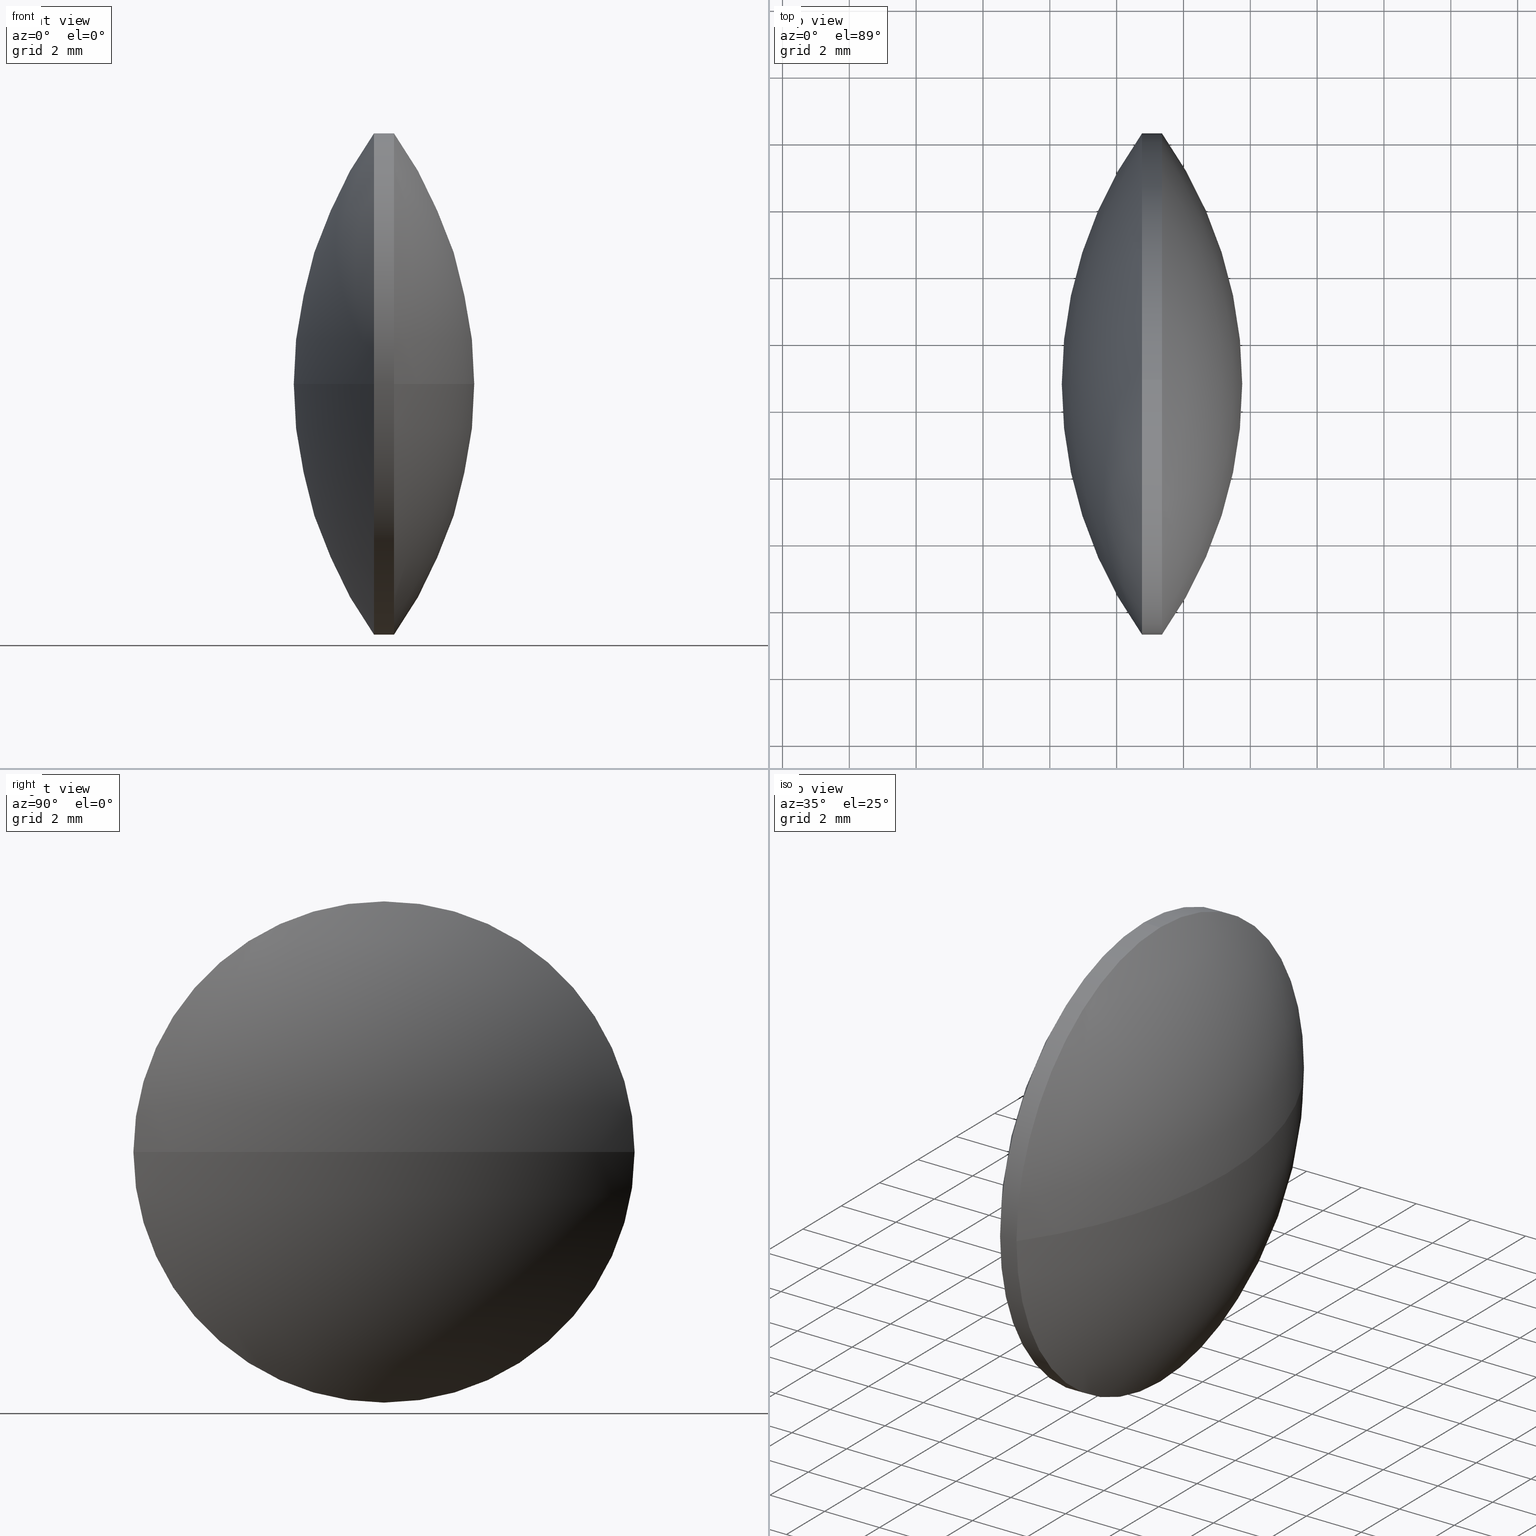
[diagram: canonical four-view strip — front | top / right | iso, engineering-drawing reading convention]
A machine part, canonical four-view strip (front | top / right | iso — engineering-drawing reading convention). The complete STEP part file that produces these views, byte-faithful:
ISO-10303-21;
HEADER;
FILE_DESCRIPTION (( 'STEP AP203' ),
    '1' );
FILE_NAME ('110095.STEP',
    '2019-07-04T03:00:58',
    ( '' ),
    ( '' ),
    'SwSTEP 2.0',
    'SolidWorks 2016',
    '' );
FILE_SCHEMA (( 'CONFIG_CONTROL_DESIGN' ));
ENDSEC;

DATA;
#1 = APPROVAL_ROLE ( '' ) ;
#2 = EDGE_CURVE ( 'NONE', #48, #190, #340, .T. ) ;
#3 = CLOSED_SHELL ( 'NONE', ( #210, #289, #75, #182, #261, #312 ) ) ;
#4 = AXIS2_PLACEMENT_3D ( 'NONE', #99, #200, #47 ) ;
#5 = FACE_OUTER_BOUND ( 'NONE', #273, .T. ) ;
#6 = CC_DESIGN_APPROVAL ( #184, ( #332 ) ) ;
#7 = COORDINATED_UNIVERSAL_TIME_OFFSET ( 8, 0, .AHEAD. ) ;
#8 = EDGE_LOOP ( 'NONE', ( #154, #253, #309, #137 ) ) ;
#9 = PRODUCT ( '110095', '110095', '', ( #166 ) ) ;
#10 = DIRECTION ( 'NONE',  ( 0.0000000000000000000, 0.0000000000000000000, 1.000000000000000000 ) ) ;
#11 = CARTESIAN_POINT ( 'NONE',  ( 61.27673844960327900, 28.71030296644745400, 0.0000000000000000000 ) ) ;
#12 = DIRECTION ( 'NONE',  ( -0.0000000000000000000, 0.0000000000000000000, 1.000000000000000000 ) ) ;
#13 = CARTESIAN_POINT ( 'NONE',  ( 61.27673844960327900, 28.71030296644745400, 0.0000000000000000000 ) ) ;
#14 = CARTESIAN_POINT ( 'NONE',  ( 46.83389843553333500, 28.71030296644745400, -7.499999999999927200 ) ) ;
#15 = VERTEX_POINT ( 'NONE', #33 ) ;
#16 = CARTESIAN_POINT ( 'NONE',  ( 61.27673844960327900, 28.71030296644745400, 0.0000000000000000000 ) ) ;
#17 = CALENDAR_DATE ( 2019, 4, 7 ) ;
#18 = PRODUCT_DEFINITION_SHAPE ( 'NONE', 'NONE',  #332 ) ;
#19 = APPROVAL_STATUS ( 'not_yet_approved' ) ;
#20 = EDGE_CURVE ( 'NONE', #120, #103, #58, .T. ) ;
#21 =( LENGTH_UNIT ( ) NAMED_UNIT ( * ) SI_UNIT ( .MILLI., .METRE. ) );
#22 = DATE_AND_TIME ( #333, #158 ) ;
#23 = CC_DESIGN_PERSON_AND_ORGANIZATION_ASSIGNMENT ( #314, #25, ( #332 ) ) ;
#24 = APPROVAL_DATE_TIME ( #256, #254 ) ;
#25 = PERSON_AND_ORGANIZATION_ROLE ( 'creator' ) ;
#26 = COORDINATED_UNIVERSAL_TIME_OFFSET ( 8, 0, .AHEAD. ) ;
#27 = APPROVAL_ROLE ( '' ) ;
#28 = ORIENTED_EDGE ( 'NONE', *, *, #203, .T. ) ;
#29 = PERSON_AND_ORGANIZATION_ROLE ( 'design_owner' ) ;
#30 = ADVANCED_BREP_SHAPE_REPRESENTATION ( '110095', ( #93, #244 ), #76 ) ;
#31 = CARTESIAN_POINT ( 'NONE',  ( 51.35798844960340400, 28.71030296644745400, 0.0000000000000000000 ) ) ;
#32 = APPROVAL_DATE_TIME ( #22, #296 ) ;
#33 = CARTESIAN_POINT ( 'NONE',  ( 50.75798844960341000, 28.71030296644745400, 7.499999999999927200 ) ) ;
#34 = DIRECTION ( 'NONE',  ( -0.0000000000000000000, 0.0000000000000000000, -1.000000000000000000 ) ) ;
#35 = CARTESIAN_POINT ( 'NONE',  ( 40.83923844960349900, 28.71030296644745400, 0.0000000000000000000 ) ) ;
#36 = EDGE_CURVE ( 'NONE', #103, #276, #331, .T. ) ;
#37 = AXIS2_PLACEMENT_3D ( 'NONE', #206, #12, #299 ) ;
#38 = CALENDAR_DATE ( 2019, 4, 7 ) ;
#39 = COORDINATED_UNIVERSAL_TIME_OFFSET ( 8, 0, .AHEAD. ) ;
#40 = ORIENTED_EDGE ( 'NONE', *, *, #2, .F. ) ;
#41 = DIRECTION ( 'NONE',  ( 0.0000000000000000000, 0.0000000000000000000, 1.000000000000000000 ) ) ;
#42 = CARTESIAN_POINT ( 'NONE',  ( 40.83923844960349900, 28.71030296644745400, 0.0000000000000000000 ) ) ;
#43 = CARTESIAN_POINT ( 'NONE',  ( 46.83389843553333500, 28.71030296644745400, 0.0000000000000000000 ) ) ;
#44 = CIRCLE ( 'NONE', #56, 7.499999999999927200 ) ;
#45 = DIRECTION ( 'NONE',  ( -1.000000000000000000, -0.0000000000000000000, -0.0000000000000000000 ) ) ;
#46 = CARTESIAN_POINT ( 'NONE',  ( 0.0000000000000000000, 0.0000000000000000000, 0.0000000000000000000 ) ) ;
#47 = DIRECTION ( 'NONE',  ( 0.0000000000000000000, 0.0000000000000000000, 1.000000000000000000 ) ) ;
#48 = VERTEX_POINT ( 'NONE', #91 ) ;
#49 = EDGE_CURVE ( 'NONE', #183, #190, #283, .T. ) ;
#50 = APPROVAL_PERSON_ORGANIZATION ( #268, #184, #313 ) ;
#51 = DATE_AND_TIME ( #286, #298 ) ;
#52 = ORIENTED_EDGE ( 'NONE', *, *, #274, .F. ) ;
#53 = PERSON_AND_ORGANIZATION_ROLE ( 'classification_officer' ) ;
#54 = CIRCLE ( 'NONE', #72, 12.91874999999988200 ) ;
#55 = AXIS2_PLACEMENT_3D ( 'NONE', #301, #86, #10 ) ;
#56 = AXIS2_PLACEMENT_3D ( 'NONE', #232, #68, #131 ) ;
#57 = ORIENTED_EDGE ( 'NONE', *, *, #2, .T. ) ;
#58 = CIRCLE ( 'NONE', #149, 12.91874999999988600 ) ;
#59 = CC_DESIGN_APPROVAL ( #254, ( #304 ) ) ;
#60 = DATE_AND_TIME ( #38, #77 ) ;
#61 = CALENDAR_DATE ( 2019, 4, 7 ) ;
#62 = DIRECTION ( 'NONE',  ( -0.0000000000000000000, 0.0000000000000000000, -1.000000000000000000 ) ) ;
#63 = CIRCLE ( 'NONE', #94, 12.91874999999985700 ) ;
#64 = CARTESIAN_POINT ( 'NONE',  ( 40.83923844960349900, 28.71030296644745400, 0.0000000000000000000 ) ) ;
#65 = DIRECTION ( 'NONE',  ( 0.0000000000000000000, 0.0000000000000000000, 1.000000000000000000 ) ) ;
#66 = COORDINATED_UNIVERSAL_TIME_OFFSET ( 8, 0, .AHEAD. ) ;
#67 = DATE_AND_TIME ( #61, #343 ) ;
#68 = DIRECTION ( 'NONE',  ( -1.000000000000000000, -0.0000000000000000000, -0.0000000000000000000 ) ) ;
#69 = DATE_AND_TIME ( #152, #239 ) ;
#70 = DIRECTION ( 'NONE',  ( 0.0000000000000000000, 0.0000000000000000000, 1.000000000000000000 ) ) ;
#71 = ORIENTED_EDGE ( 'NONE', *, *, #223, .F. ) ;
#72 = AXIS2_PLACEMENT_3D ( 'NONE', #35, #155, #284 ) ;
#73 = DIRECTION ( 'NONE',  ( 1.000000000000000000, 0.0000000000000000000, 0.0000000000000000000 ) ) ;
#74 = AXIS2_PLACEMENT_3D ( 'NONE', #13, #34, #249 ) ;
#75 = ADVANCED_FACE ( 'NONE', ( #5 ), #250, .T. ) ;
#76 =( GEOMETRIC_REPRESENTATION_CONTEXT ( 3 ) GLOBAL_UNCERTAINTY_ASSIGNED_CONTEXT ( ( #281 ) ) GLOBAL_UNIT_ASSIGNED_CONTEXT ( ( #21, #102, #262 ) ) REPRESENTATION_CONTEXT ( 'NONE', 'WORKASPACE' ) );
#77 = LOCAL_TIME ( 11, 0, 58.00000000000000000, #324 ) ;
#78 = LOCAL_TIME ( 11, 0, 58.00000000000000000, #39 ) ;
#79 = ORIENTED_EDGE ( 'NONE', *, *, #49, .T. ) ;
#80 = APPROVAL ( #270, 'δָ��' ) ;
#81 = PERSON_AND_ORGANIZATION_ROLE ( 'design_supplier' ) ;
#82 = EDGE_CURVE ( 'NONE', #120, #300, #54, .T. ) ;
#83 = LOCAL_TIME ( 11, 0, 58.00000000000000000, #218 ) ;
#84 = PERSON_AND_ORGANIZATION ( #277, #98 ) ;
#85 = CARTESIAN_POINT ( 'NONE',  ( 48.35798844960342500, 28.71030296644745400, 0.0000000000000000000 ) ) ;
#86 = DIRECTION ( 'NONE',  ( -1.000000000000000000, -0.0000000000000000000, -0.0000000000000000000 ) ) ;
#87 = DATE_TIME_ROLE ( 'creation_date' ) ;
#88 = CC_DESIGN_SECURITY_CLASSIFICATION ( #204, ( #156 ) ) ;
#89 = ORIENTED_EDGE ( 'NONE', *, *, #203, .F. ) ;
#90 = CARTESIAN_POINT ( 'NONE',  ( 50.75798844960341000, 28.71030296644745400, 0.0000000000000000000 ) ) ;
#91 = CARTESIAN_POINT ( 'NONE',  ( 50.75798844960341000, 36.21030296644737900, 0.0000000000000000000 ) ) ;
#92 = AXIS2_PLACEMENT_3D ( 'NONE', #16, #62, #193 ) ;
#93 = MANIFOLD_SOLID_BREP ( '��ת1', #3 ) ;
#94 = AXIS2_PLACEMENT_3D ( 'NONE', #11, #195, #225 ) ;
#95 = PERSON_AND_ORGANIZATION_ROLE ( 'creator' ) ;
#96 = PERSON_AND_ORGANIZATION ( #277, #98 ) ;
#97 = CC_DESIGN_APPROVAL ( #285, ( #177 ) ) ;
#98 = ORGANIZATION ( 'δָ��', 'δָ��', '' ) ;
#99 = CARTESIAN_POINT ( 'NONE',  ( 50.75798844960341000, 28.71030296644745400, 0.0000000000000000000 ) ) ;
#100 = CC_DESIGN_PERSON_AND_ORGANIZATION_ASSIGNMENT ( #117, #109, ( #156 ) ) ;
#101 = COORDINATED_UNIVERSAL_TIME_OFFSET ( 8, 0, .AHEAD. ) ;
#102 =( NAMED_UNIT ( * ) PLANE_ANGLE_UNIT ( ) SI_UNIT ( $, .RADIAN. ) );
#103 = VERTEX_POINT ( 'NONE', #124 ) ;
#104 = CARTESIAN_POINT ( 'NONE',  ( 46.83389843553333500, 28.71030296644745400, 7.499999999999927200 ) ) ;
#105 = CARTESIAN_POINT ( 'NONE',  ( 51.35798844960340400, 28.71030296644745400, 7.499999999999927200 ) ) ;
#106 = DIRECTION ( 'NONE',  ( -1.000000000000000000, -0.0000000000000000000, -0.0000000000000000000 ) ) ;
#107 = EDGE_CURVE ( 'NONE', #300, #183, #197, .T. ) ;
#108 = SHAPE_DEFINITION_REPRESENTATION ( #18, #30 ) ;
#109 = PERSON_AND_ORGANIZATION_ROLE ( 'creator' ) ;
#110 = APPLICATION_CONTEXT ( 'configuration controlled 3d designs of mechanical parts and assemblies' ) ;
#111 = DATE_TIME_ROLE ( 'classification_date' ) ;
#112 = CYLINDRICAL_SURFACE ( 'NONE', #308, 7.499999999999927200 ) ;
#113 = AXIS2_PLACEMENT_3D ( 'NONE', #234, #205, #70 ) ;
#114 = FACE_OUTER_BOUND ( 'NONE', #151, .T. ) ;
#115 = EDGE_LOOP ( 'NONE', ( #52, #247, #138, #209 ) ) ;
#116 = CC_DESIGN_PERSON_AND_ORGANIZATION_ASSIGNMENT ( #303, #336, ( #222 ) ) ;
#117 = PERSON_AND_ORGANIZATION ( #277, #98 ) ;
#118 = CARTESIAN_POINT ( 'NONE',  ( 40.83923844960349900, 28.71030296644745400, 0.0000000000000000000 ) ) ;
#119 = PERSON_AND_ORGANIZATION ( #277, #98 ) ;
#120 = VERTEX_POINT ( 'NONE', #327 ) ;
#121 = DIRECTION ( 'NONE',  ( 0.0000000000000000000, 1.224646799147353200E-016, -1.000000000000000000 ) ) ;
#122 = DIRECTION ( 'NONE',  ( 0.0000000000000000000, 1.000000000000000000, 1.224646799147352700E-016 ) ) ;
#123 = VECTOR ( 'NONE', #181, 1000.000000000000000 ) ;
#124 = CARTESIAN_POINT ( 'NONE',  ( 51.35798844960340400, 21.21030296644752200, -9.184850993605063100E-016 ) ) ;
#125 = DIRECTION ( 'NONE',  ( -0.0000000000000000000, 0.0000000000000000000, -1.000000000000000000 ) ) ;
#126 = DIRECTION ( 'NONE',  ( -1.000000000000000000, -0.0000000000000000000, -0.0000000000000000000 ) ) ;
#127 = AXIS2_PLACEMENT_3D ( 'NONE', #90, #173, #248 ) ;
#128 = APPROVAL_PERSON_ORGANIZATION ( #174, #80, #144 ) ;
#129 = DATE_AND_TIME ( #334, #78 ) ;
#130 = EDGE_LOOP ( 'NONE', ( #321, #79, #40, #344, #233, #245 ) ) ;
#131 = DIRECTION ( 'NONE',  ( 0.0000000000000000000, 0.0000000000000000000, 1.000000000000000000 ) ) ;
#132 = CARTESIAN_POINT ( 'NONE',  ( 0.0000000000000000000, 0.0000000000000000000, 0.0000000000000000000 ) ) ;
#133 = CC_DESIGN_PERSON_AND_ORGANIZATION_ASSIGNMENT ( #165, #53, ( #204 ) ) ;
#134 = CIRCLE ( 'NONE', #4, 7.499999999999927200 ) ;
#135 = AXIS2_PLACEMENT_3D ( 'NONE', #224, #126, #278 ) ;
#136 = DIRECTION ( 'NONE',  ( 1.000000000000000000, 0.0000000000000000000, 0.0000000000000000000 ) ) ;
#137 = ORIENTED_EDGE ( 'NONE', *, *, #36, .F. ) ;
#138 = ORIENTED_EDGE ( 'NONE', *, *, #290, .T. ) ;
#139 = SECURITY_CLASSIFICATION ( '', '', #146 ) ;
#140 = APPROVAL_STATUS ( 'not_yet_approved' ) ;
#141 = APPROVAL_PERSON_ORGANIZATION ( #119, #285, #1 ) ;
#142 = ORIENTED_EDGE ( 'NONE', *, *, #322, .F. ) ;
#143 = PERSON_AND_ORGANIZATION_ROLE ( 'design_supplier' ) ;
#144 = APPROVAL_ROLE ( '' ) ;
#145 = FACE_OUTER_BOUND ( 'NONE', #115, .T. ) ;
#146 = SECURITY_CLASSIFICATION_LEVEL ( 'unclassified' ) ;
#147 = ORIENTED_EDGE ( 'NONE', *, *, #107, .F. ) ;
#148 = CC_DESIGN_PERSON_AND_ORGANIZATION_ASSIGNMENT ( #305, #29, ( #9 ) ) ;
#149 = AXIS2_PLACEMENT_3D ( 'NONE', #118, #121, #122 ) ;
#150 = PERSON_AND_ORGANIZATION ( #277, #98 ) ;
#151 = EDGE_LOOP ( 'NONE', ( #265, #317, #199, #198, #142, #89 ) ) ;
#152 = CALENDAR_DATE ( 2019, 4, 7 ) ;
#153 = APPROVAL ( #242, 'δָ��' ) ;
#154 = ORIENTED_EDGE ( 'NONE', *, *, #20, .F. ) ;
#155 = DIRECTION ( 'NONE',  ( -0.0000000000000000000, 0.0000000000000000000, 1.000000000000000000 ) ) ;
#156 = PRODUCT_DEFINITION_FORMATION_WITH_SPECIFIED_SOURCE ( '�κ�', '', #9, .NOT_KNOWN. ) ;
#157 = AXIS2_PLACEMENT_3D ( 'NONE', #64, #125, #226 ) ;
#158 = LOCAL_TIME ( 11, 0, 58.00000000000000000, #101 ) ;
#159 = CC_DESIGN_PERSON_AND_ORGANIZATION_ASSIGNMENT ( #231, #293, ( #139 ) ) ;
#160 = LOCAL_TIME ( 11, 0, 58.00000000000000000, #202 ) ;
#161 = DIRECTION ( 'NONE',  ( -0.0000000000000000000, 0.0000000000000000000, -1.000000000000000000 ) ) ;
#162 = APPLICATION_CONTEXT ( 'configuration controlled 3d designs of mechanical parts and assemblies' ) ;
#163 = MECHANICAL_CONTEXT ( 'NONE', #162, 'mechanical' ) ;
#164 = CC_DESIGN_PERSON_AND_ORGANIZATION_ASSIGNMENT ( #188, #95, ( #304 ) ) ;
#165 = PERSON_AND_ORGANIZATION ( #277, #98 ) ;
#166 = MECHANICAL_CONTEXT ( 'NONE', #110, 'mechanical' ) ;
#167 = DATE_TIME_ROLE ( 'classification_date' ) ;
#168 = SECURITY_CLASSIFICATION_LEVEL ( 'unclassified' ) ;
#169 = PRODUCT_RELATED_PRODUCT_CATEGORY ( 'detail', '', ( #9 ) ) ;
#170 = APPROVAL_DATE_TIME ( #185, #80 ) ;
#171 = PRODUCT_DEFINITION_SHAPE ( 'NONE', 'NONE',  #304 ) ;
#172 = PERSON_AND_ORGANIZATION ( #277, #98 ) ;
#173 = DIRECTION ( 'NONE',  ( -1.000000000000000000, -0.0000000000000000000, -0.0000000000000000000 ) ) ;
#174 = PERSON_AND_ORGANIZATION ( #277, #98 ) ;
#175 = CARTESIAN_POINT ( 'NONE',  ( 51.35798844960340400, 28.71030296644745400, -7.499999999999927200 ) ) ;
#176 = APPROVAL_ROLE ( '' ) ;
#177 = PRODUCT_DEFINITION_FORMATION_WITH_SPECIFIED_SOURCE ( '�κ�', '', #222, .NOT_KNOWN. ) ;
#178 = CALENDAR_DATE ( 2019, 4, 7 ) ;
#179 = VERTEX_POINT ( 'NONE', #85 ) ;
#180 = APPLICATION_PROTOCOL_DEFINITION ( 'international standard', 'config_control_design', 1994, #339 ) ;
#181 = DIRECTION ( 'NONE',  ( -1.000000000000000000, -0.0000000000000000000, -0.0000000000000000000 ) ) ;
#182 = ADVANCED_FACE ( 'NONE', ( #145 ), #319, .T. ) ;
#183 = VERTEX_POINT ( 'NONE', #175 ) ;
#184 = APPROVAL ( #187, 'δָ��' ) ;
#185 = DATE_AND_TIME ( #17, #302 ) ;
#186 = EDGE_CURVE ( 'NONE', #183, #103, #260, .T. ) ;
#187 = APPROVAL_STATUS ( 'not_yet_approved' ) ;
#188 = PERSON_AND_ORGANIZATION ( #277, #98 ) ;
#189 = LINE ( 'NONE', #104, #123 ) ;
#190 = VERTEX_POINT ( 'NONE', #227 ) ;
#191 = CC_DESIGN_PERSON_AND_ORGANIZATION_ASSIGNMENT ( #214, #345, ( #177 ) ) ;
#192 = DATE_AND_TIME ( #241, #230 ) ;
#193 = DIRECTION ( 'NONE',  ( 0.0000000000000000000, 1.000000000000000000, 0.0000000000000000000 ) ) ;
#194 = ORIENTED_EDGE ( 'NONE', *, *, #274, .T. ) ;
#195 = DIRECTION ( 'NONE',  ( 0.0000000000000000000, 1.224646799147353200E-016, -1.000000000000000000 ) ) ;
#196 = COORDINATED_UNIVERSAL_TIME_OFFSET ( 8, 0, .AHEAD. ) ;
#197 = CIRCLE ( 'NONE', #135, 7.499999999999927200 ) ;
#198 = ORIENTED_EDGE ( 'NONE', *, *, #341, .T. ) ;
#199 = ORIENTED_EDGE ( 'NONE', *, *, #36, .T. ) ;
#200 = DIRECTION ( 'NONE',  ( -1.000000000000000000, -0.0000000000000000000, -0.0000000000000000000 ) ) ;
#201 = CC_DESIGN_DATE_AND_TIME_ASSIGNMENT ( #67, #111, ( #139 ) ) ;
#202 = COORDINATED_UNIVERSAL_TIME_OFFSET ( 8, 0, .AHEAD. ) ;
#203 = EDGE_CURVE ( 'NONE', #190, #288, #134, .T. ) ;
#204 = SECURITY_CLASSIFICATION ( '', '', #168 ) ;
#205 = DIRECTION ( 'NONE',  ( -1.000000000000000000, -0.0000000000000000000, -0.0000000000000000000 ) ) ;
#206 = CARTESIAN_POINT ( 'NONE',  ( 61.27673844960327900, 28.71030296644745400, 0.0000000000000000000 ) ) ;
#207 = CIRCLE ( 'NONE', #113, 7.499999999999927200 ) ;
#208 = CARTESIAN_POINT ( 'NONE',  ( 50.75798844960341000, 28.71030296644745400, 0.0000000000000000000 ) ) ;
#209 = ORIENTED_EDGE ( 'NONE', *, *, #223, .T. ) ;
#210 = ADVANCED_FACE ( 'NONE', ( #329 ), #112, .T. ) ;
#211 = VECTOR ( 'NONE', #280, 1000.000000000000000 ) ;
#212 = APPLICATION_PROTOCOL_DEFINITION ( 'international standard', 'config_control_design', 1994, #162 ) ;
#213 = CC_DESIGN_PERSON_AND_ORGANIZATION_ASSIGNMENT ( #172, #81, ( #177 ) ) ;
#214 = PERSON_AND_ORGANIZATION ( #277, #98 ) ;
#215 = DATE_TIME_ROLE ( 'creation_date' ) ;
#216 = APPROVAL_DATE_TIME ( #69, #153 ) ;
#217 = EDGE_LOOP ( 'NONE', ( #326, #221, #269, #147 ) ) ;
#218 = COORDINATED_UNIVERSAL_TIME_OFFSET ( 8, 0, .AHEAD. ) ;
#219 = CC_DESIGN_APPROVAL ( #296, ( #139 ) ) ;
#220 = APPROVAL_PERSON_ORGANIZATION ( #84, #153, #27 ) ;
#221 = ORIENTED_EDGE ( 'NONE', *, *, #20, .T. ) ;
#222 = PRODUCT ( '110095', '110095', '', ( #163 ) ) ;
#223 = EDGE_CURVE ( 'NONE', #48, #179, #337, .T. ) ;
#224 = CARTESIAN_POINT ( 'NONE',  ( 51.35798844960340400, 28.71030296644745400, 0.0000000000000000000 ) ) ;
#225 = DIRECTION ( 'NONE',  ( 0.0000000000000000000, 1.000000000000000000, 1.224646799147353200E-016 ) ) ;
#226 = DIRECTION ( 'NONE',  ( 0.0000000000000000000, 1.000000000000000000, 0.0000000000000000000 ) ) ;
#227 = CARTESIAN_POINT ( 'NONE',  ( 50.75798844960341000, 28.71030296644745400, -7.499999999999927200 ) ) ;
#228 = DIRECTION ( 'NONE',  ( 0.0000000000000000000, 1.000000000000000000, 0.0000000000000000000 ) ) ;
#229 = CC_DESIGN_SECURITY_CLASSIFICATION ( #139, ( #177 ) ) ;
#230 = LOCAL_TIME ( 11, 0, 58.00000000000000000, #255 ) ;
#231 = PERSON_AND_ORGANIZATION ( #277, #98 ) ;
#232 = CARTESIAN_POINT ( 'NONE',  ( 51.35798844960340400, 28.71030296644745400, 0.0000000000000000000 ) ) ;
#233 = ORIENTED_EDGE ( 'NONE', *, *, #341, .F. ) ;
#234 = CARTESIAN_POINT ( 'NONE',  ( 50.75798844960341000, 28.71030296644745400, 0.0000000000000000000 ) ) ;
#235 = DIRECTION ( 'NONE',  ( 0.0000000000000000000, 0.0000000000000000000, 1.000000000000000000 ) ) ;
#236 = APPROVAL_PERSON_ORGANIZATION ( #96, #296, #271 ) ;
#237 = CALENDAR_DATE ( 2019, 4, 7 ) ;
#238 = CC_DESIGN_DATE_AND_TIME_ASSIGNMENT ( #192, #215, ( #332 ) ) ;
#239 = LOCAL_TIME ( 11, 0, 58.00000000000000000, #196 ) ;
#240 = EDGE_CURVE ( 'NONE', #276, #300, #44, .T. ) ;
#241 = CALENDAR_DATE ( 2019, 4, 7 ) ;
#242 = APPROVAL_STATUS ( 'not_yet_approved' ) ;
#243 = AXIS2_PLACEMENT_3D ( 'NONE', #42, #161, #228 ) ;
#244 = AXIS2_PLACEMENT_3D ( 'NONE', #46, #41, #73 ) ;
#245 = ORIENTED_EDGE ( 'NONE', *, *, #240, .T. ) ;
#246 = PERSON_AND_ORGANIZATION ( #277, #98 ) ;
#247 = ORIENTED_EDGE ( 'NONE', *, *, #322, .T. ) ;
#248 = DIRECTION ( 'NONE',  ( 0.0000000000000000000, 0.0000000000000000000, 1.000000000000000000 ) ) ;
#249 = DIRECTION ( 'NONE',  ( 0.0000000000000000000, 1.000000000000000000, 0.0000000000000000000 ) ) ;
#250 = SPHERICAL_SURFACE ( 'NONE', #92, 12.91874999999985700 ) ;
#251 = DIRECTION ( 'NONE',  ( 0.0000000000000000000, 0.0000000000000000000, 1.000000000000000000 ) ) ;
#252 = FACE_OUTER_BOUND ( 'NONE', #217, .T. ) ;
#253 = ORIENTED_EDGE ( 'NONE', *, *, #82, .T. ) ;
#254 = APPROVAL ( #19, 'δָ��' ) ;
#255 = COORDINATED_UNIVERSAL_TIME_OFFSET ( 8, 0, .AHEAD. ) ;
#256 = DATE_AND_TIME ( #237, #160 ) ;
#257 = CC_DESIGN_APPROVAL ( #80, ( #156 ) ) ;
#258 = DIRECTION ( 'NONE',  ( 0.0000000000000000000, 0.0000000000000000000, 1.000000000000000000 ) ) ;
#259 = DIRECTION ( 'NONE',  ( -1.000000000000000000, -0.0000000000000000000, -0.0000000000000000000 ) ) ;
#260 = CIRCLE ( 'NONE', #282, 7.499999999999927200 ) ;
#261 = ADVANCED_FACE ( 'NONE', ( #330 ), #264, .T. ) ;
#262 =( NAMED_UNIT ( * ) SI_UNIT ( $, .STERADIAN. ) SOLID_ANGLE_UNIT ( ) );
#263 = APPROVAL_STATUS ( 'not_yet_approved' ) ;
#264 = SPHERICAL_SURFACE ( 'NONE', #157, 12.91874999999988200 ) ;
#265 = ORIENTED_EDGE ( 'NONE', *, *, #49, .F. ) ;
#266 = CC_DESIGN_DATE_AND_TIME_ASSIGNMENT ( #129, #87, ( #304 ) ) ;
#267 = CYLINDRICAL_SURFACE ( 'NONE', #323, 7.499999999999927200 ) ;
#268 = PERSON_AND_ORGANIZATION ( #277, #98 ) ;
#269 = ORIENTED_EDGE ( 'NONE', *, *, #186, .F. ) ;
#270 = APPROVAL_STATUS ( 'not_yet_approved' ) ;
#271 = APPROVAL_ROLE ( '' ) ;
#272 = CIRCLE ( 'NONE', #275, 7.499999999999927200 ) ;
#273 = EDGE_LOOP ( 'NONE', ( #57, #28, #194, #71 ) ) ;
#274 = EDGE_CURVE ( 'NONE', #288, #179, #63, .T. ) ;
#275 = AXIS2_PLACEMENT_3D ( 'NONE', #208, #106, #235 ) ;
#276 = VERTEX_POINT ( 'NONE', #105 ) ;
#277 = PERSON ( 'δָ��', 'δָ��', 'δָ��', ('δָ��'), ('δָ��'), ('δָ��') ) ;
#278 = DIRECTION ( 'NONE',  ( 0.0000000000000000000, 0.0000000000000000000, 1.000000000000000000 ) ) ;
#279 = CC_DESIGN_PERSON_AND_ORGANIZATION_ASSIGNMENT ( #246, #143, ( #156 ) ) ;
#280 = DIRECTION ( 'NONE',  ( -1.000000000000000000, -0.0000000000000000000, -0.0000000000000000000 ) ) ;
#281 = UNCERTAINTY_MEASURE_WITH_UNIT (LENGTH_MEASURE( 1.000000000000000100E-005 ), #21, 'distance_accuracy_value', 'NONE');
#282 = AXIS2_PLACEMENT_3D ( 'NONE', #31, #328, #251 ) ;
#283 = LINE ( 'NONE', #14, #211 ) ;
#284 = DIRECTION ( 'NONE',  ( 1.000000000000000000, 0.0000000000000000000, 0.0000000000000000000 ) ) ;
#285 = APPROVAL ( #263, 'δָ��' ) ;
#286 = CALENDAR_DATE ( 2019, 4, 7 ) ;
#287 = CARTESIAN_POINT ( 'NONE',  ( 50.75798844960341000, 21.21030296644752500, -9.184850993605061200E-016 ) ) ;
#288 = VERTEX_POINT ( 'NONE', #287 ) ;
#289 = ADVANCED_FACE ( 'NONE', ( #252 ), #320, .T. ) ;
#290 = EDGE_CURVE ( 'NONE', #15, #48, #207, .T. ) ;
#291 = DATE_AND_TIME ( #178, #83 ) ;
#292 = AXIS2_PLACEMENT_3D ( 'NONE', #132, #307, #136 ) ;
#293 = PERSON_AND_ORGANIZATION_ROLE ( 'classification_officer' ) ;
#294 = CC_DESIGN_DATE_AND_TIME_ASSIGNMENT ( #291, #167, ( #204 ) ) ;
#295 = APPLICATION_PROTOCOL_DEFINITION ( 'international standard', 'config_control_design', 1994, #315 ) ;
#296 = APPROVAL ( #140, 'δָ��' ) ;
#297 = APPROVAL_DATE_TIME ( #60, #184 ) ;
#298 = LOCAL_TIME ( 11, 0, 58.00000000000000000, #7 ) ;
#299 = DIRECTION ( 'NONE',  ( 1.000000000000000000, 0.0000000000000000000, 0.0000000000000000000 ) ) ;
#300 = VERTEX_POINT ( 'NONE', #338 ) ;
#301 = CARTESIAN_POINT ( 'NONE',  ( 51.35798844960340400, 28.71030296644745400, 0.0000000000000000000 ) ) ;
#302 = LOCAL_TIME ( 11, 0, 58.00000000000000000, #26 ) ;
#303 = PERSON_AND_ORGANIZATION ( #277, #98 ) ;
#304 = PRODUCT_DEFINITION ( 'δ֪', '', #177, #311 ) ;
#305 = PERSON_AND_ORGANIZATION ( #277, #98 ) ;
#306 = CC_DESIGN_APPROVAL ( #153, ( #204 ) ) ;
#307 = DIRECTION ( 'NONE',  ( 0.0000000000000000000, 0.0000000000000000000, 1.000000000000000000 ) ) ;
#308 = AXIS2_PLACEMENT_3D ( 'NONE', #335, #259, #65 ) ;
#309 = ORIENTED_EDGE ( 'NONE', *, *, #240, .F. ) ;
#310 = PRODUCT_RELATED_PRODUCT_CATEGORY ( 'detail', '', ( #222 ) ) ;
#311 = DESIGN_CONTEXT ( 'detailed design', #339, 'design' ) ;
#312 = ADVANCED_FACE ( 'NONE', ( #114 ), #267, .T. ) ;
#313 = APPROVAL_ROLE ( '' ) ;
#314 = PERSON_AND_ORGANIZATION ( #277, #98 ) ;
#315 = APPLICATION_CONTEXT ( 'configuration controlled 3d designs of mechanical parts and assemblies' ) ;
#316 = APPROVAL_DATE_TIME ( #51, #285 ) ;
#317 = ORIENTED_EDGE ( 'NONE', *, *, #186, .T. ) ;
#318 = APPLICATION_PROTOCOL_DEFINITION ( 'international standard', 'config_control_design', 1994, #110 ) ;
#319 = SPHERICAL_SURFACE ( 'NONE', #74, 12.91874999999985700 ) ;
#320 = SPHERICAL_SURFACE ( 'NONE', #243, 12.91874999999988200 ) ;
#321 = ORIENTED_EDGE ( 'NONE', *, *, #107, .T. ) ;
#322 = EDGE_CURVE ( 'NONE', #288, #15, #272, .T. ) ;
#323 = AXIS2_PLACEMENT_3D ( 'NONE', #43, #45, #258 ) ;
#324 = COORDINATED_UNIVERSAL_TIME_OFFSET ( 8, 0, .AHEAD. ) ;
#325 = APPROVAL_PERSON_ORGANIZATION ( #150, #254, #176 ) ;
#326 = ORIENTED_EDGE ( 'NONE', *, *, #82, .F. ) ;
#327 = CARTESIAN_POINT ( 'NONE',  ( 53.75798844960338100, 28.71030296644745400, 0.0000000000000000000 ) ) ;
#328 = DIRECTION ( 'NONE',  ( -1.000000000000000000, -0.0000000000000000000, -0.0000000000000000000 ) ) ;
#329 = FACE_OUTER_BOUND ( 'NONE', #130, .T. ) ;
#330 = FACE_OUTER_BOUND ( 'NONE', #8, .T. ) ;
#331 = CIRCLE ( 'NONE', #55, 7.499999999999927200 ) ;
#332 = PRODUCT_DEFINITION ( 'δ֪', '', #156, #342 ) ;
#333 = CALENDAR_DATE ( 2019, 4, 7 ) ;
#334 = CALENDAR_DATE ( 2019, 4, 7 ) ;
#335 = CARTESIAN_POINT ( 'NONE',  ( 46.83389843553333500, 28.71030296644745400, 0.0000000000000000000 ) ) ;
#336 = PERSON_AND_ORGANIZATION_ROLE ( 'design_owner' ) ;
#337 = CIRCLE ( 'NONE', #37, 12.91874999999985400 ) ;
#338 = CARTESIAN_POINT ( 'NONE',  ( 51.35798844960340400, 36.21030296644737900, 0.0000000000000000000 ) ) ;
#339 = APPLICATION_CONTEXT ( 'configuration controlled 3d designs of mechanical parts and assemblies' ) ;
#340 = CIRCLE ( 'NONE', #127, 7.499999999999927200 ) ;
#341 = EDGE_CURVE ( 'NONE', #276, #15, #189, .T. ) ;
#342 = DESIGN_CONTEXT ( 'detailed design', #315, 'design' ) ;
#343 = LOCAL_TIME ( 11, 0, 58.00000000000000000, #66 ) ;
#344 = ORIENTED_EDGE ( 'NONE', *, *, #290, .F. ) ;
#345 = PERSON_AND_ORGANIZATION_ROLE ( 'creator' ) ;
ENDSEC;
END-ISO-10303-21;
